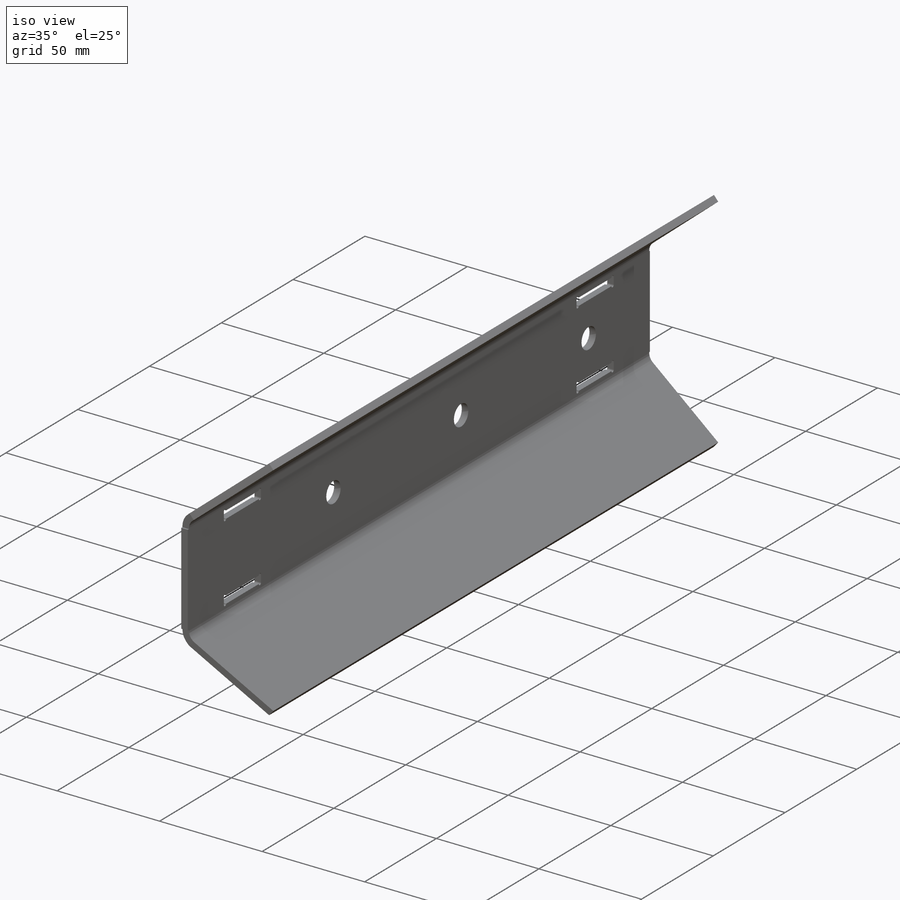
[diagram: iso view]
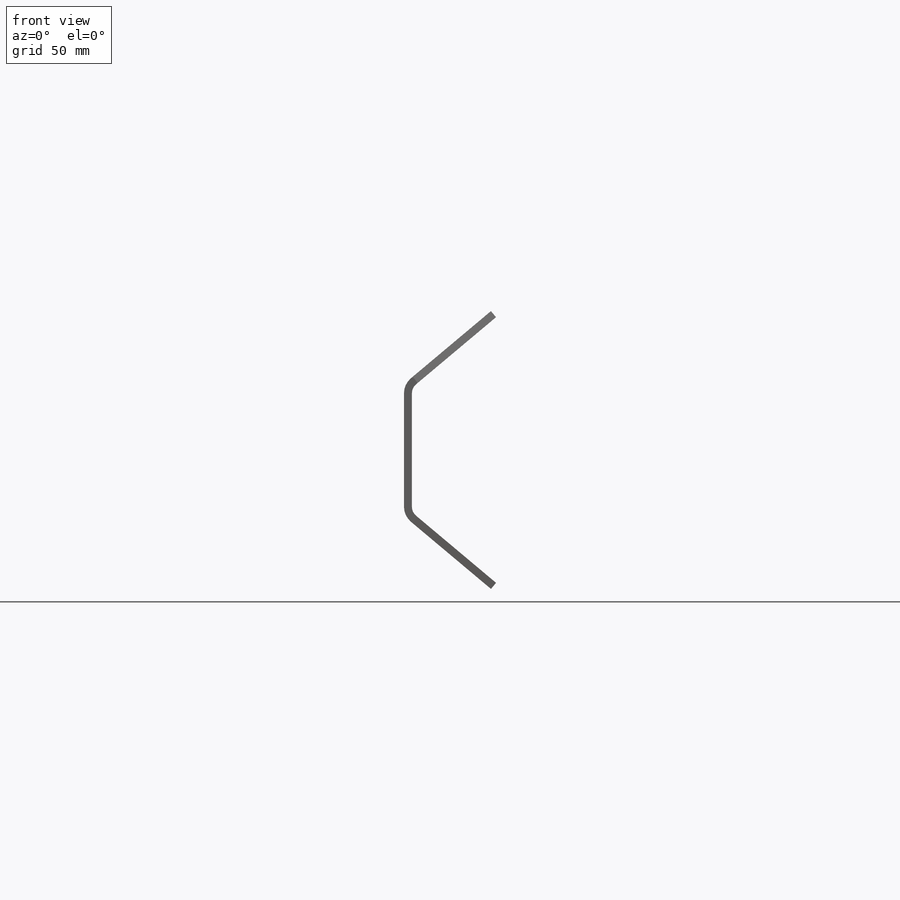
[diagram: front view]
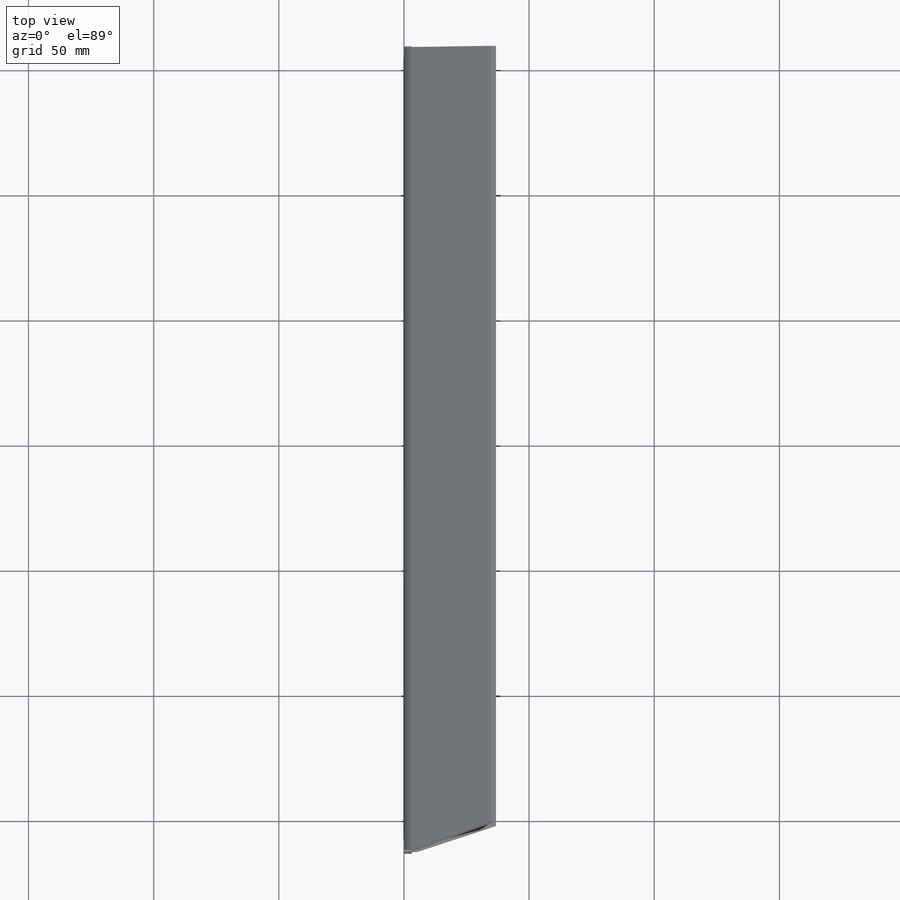
[diagram: top view]
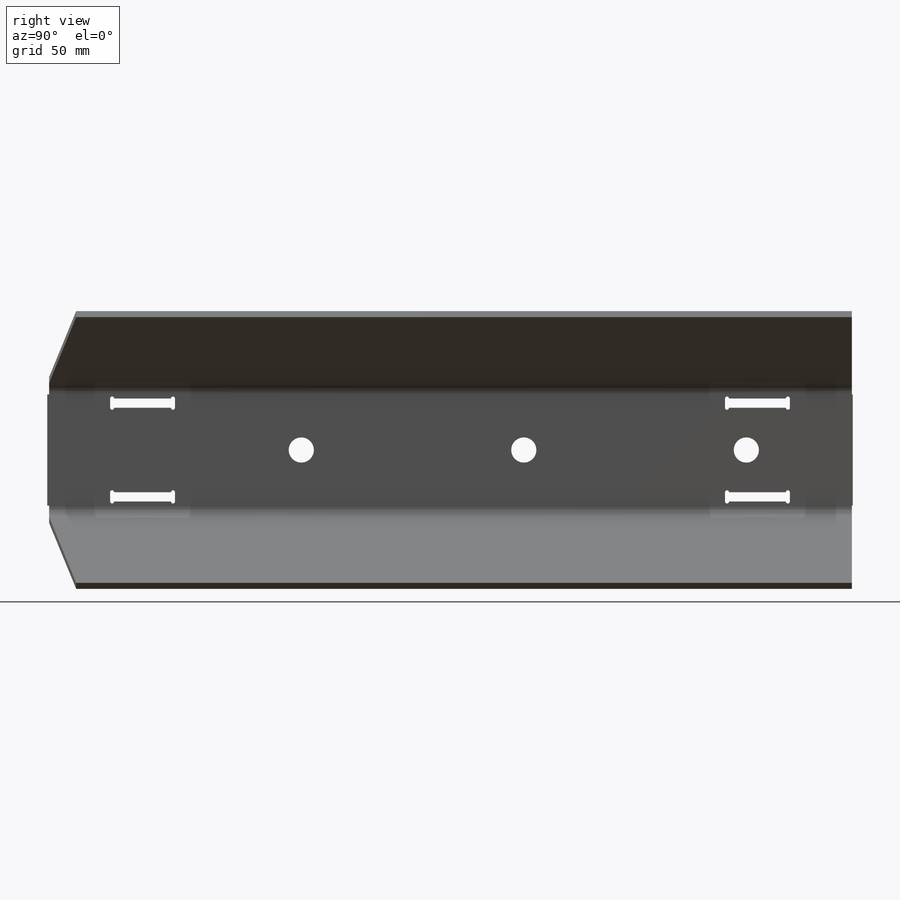
[diagram: right view]
SOLIDWORKS PART (.sldprt)
format: sldprt  version: not decoded by parser v0  size: 1,028,096 bytes
history: native  units: mm
features: sketch x17, hole x4, sheet_metal_op x4, extrude x2, cut_extrude x2, material x1 + 9 further entries (+13 scaffold rows collapsed; 1 parser-record rows omitted)
feature tree (53):
  scaffold x13  (default folders/planes/origin — collapsed)
  material  "Plain Carbon Steel"
  sketch  "Sketch1"  dims[c1.D1=69.85mm c1.D2=69.85mm c1.D3=25.4mm c1.D4=25.4mm c1.D5=15.5575mm c1.D6=6.35mm c1.D7=323.85mm c1.D8=1.5875mm c1.D9=3.175mm c1.D10=1.5875mm c1.D11=1.5875mm c1.D12=~1.984375mm c2.D6=~2.38125mm c2.D5=22.225mm c2.D13=163.5125mm c2.D14=6.35mm c2.D15=22.225mm]
  extrude  "Boss-Extrude1"  Depth=3.175mm
  sketch  "Sketch11"  dims[c1.D1=~7.199335mm c1.D2=~5.122604mm c2.D1=~6.769263mm c2.D2=1.5875mm c3.D1=~6.769263mm c3.D2=1.5875mm c4.D1=6.35mm c4.D2=1.5875mm c5.D1=6.35mm c5.D2=1.5875mm]
  extrude  "Boss-Extrude2"  Depth=4.7625mm
  sketch  "Sketch6"  dims[D1=25.4mm D2=25.4mm D3=320.675mm]
  parser-record x1  (decoder bookkeeping rows leaked as tree rows — omitted from the tree; the rows remain in map.json)
  "SketchBend2"
  hole  "3/8 Clearance Hole1"  Diameter=10.0838mm Depth=3.175mm
  sketch  "Sketch8"  dims[c1.D1=88.9mm c1.D2=88.9mm c1.D3=88.9mm c2.D2=88.9mm c2.D3=42.545mm c2.D4=88.9mm]
  sketch  "Sketch7"  dims[hole-wizard template sketch: 60 standard entries collapsed; hole parameters kept: c18.Thru Hole Depth=3.175mm]
  sketch  "Sketch9"  dims[c1.D1=~61.808826mm c1.D2=~59.241687mm c2.D1=3.175mm c2.D2=25.4mm c3.D1=3.175mm c3.D2=25.4mm c4.D1=~133.865048mm c4.D2=~63.639753mm c5.D1=3.175mm c5.D2=25.4mm c6.D1=3.175mm c6.D2=25.4mm c7.D1=0.254mm]
  cut_extrude  "Cut-Extrude1"  [1 undecoded]
  sketch  "Sketch10"  dims[D1=1.5875mm]
  cut_extrude  "Cut-Extrude2"  [1 undecoded]
  sketch  "Bend-Lines1"
  sketch  "Bounding-Box1"
  sheet_metal_op  "Sheet-Metal2"
  "Flat-Pattern2"
  sketch  "Bend-Lines2"
  sketch  "Bounding-Box2"  dims[Sketch Transformation1=0.0]
  "Flatten-<SketchBend2>1"
  hole  "Sheet-Metal3"  Diameter=6.35mm
  sheet_metal_op  "Flat-Pattern2"
  sketch  "Bend-Lines2"
  sketch  "Bounding-Box2"  dims[Sketch Transformation1=0.0]
  "Flatten-<SketchBend1>1"
  "Flatten-<SketchBend2>1"
  hole  "Sheet-Metal4"  Diameter=6.35mm
  sheet_metal_op  "Flat-Pattern2"
  sketch  "Bend-Lines2"
  sketch  "Bounding-Box2"  dims[Sketch Transformation1=0.0]
  "Flatten-<SketchBend1>1"
  "Flatten-<SketchBend2>1"
  hole  "Sheet-Metal5"  Diameter=6.35mm
  sheet_metal_op  "Flat-Pattern2"
  sketch  "Bend-Lines2"
  sketch  "Bounding-Box2"
  "Flatten-<SketchBend1>1"
  "Flatten-<SketchBend2>1"  Sketch Transformation1=0
decode coverage: 16 of 29 modeling features carry decoded parameters; 9 rows unclassified (native names shown)
note: ~ marks probable driven/reference dimensions
note: 2 parameter values undecoded
note: suppression state not decoded; provenance and decode notes live in map.json
